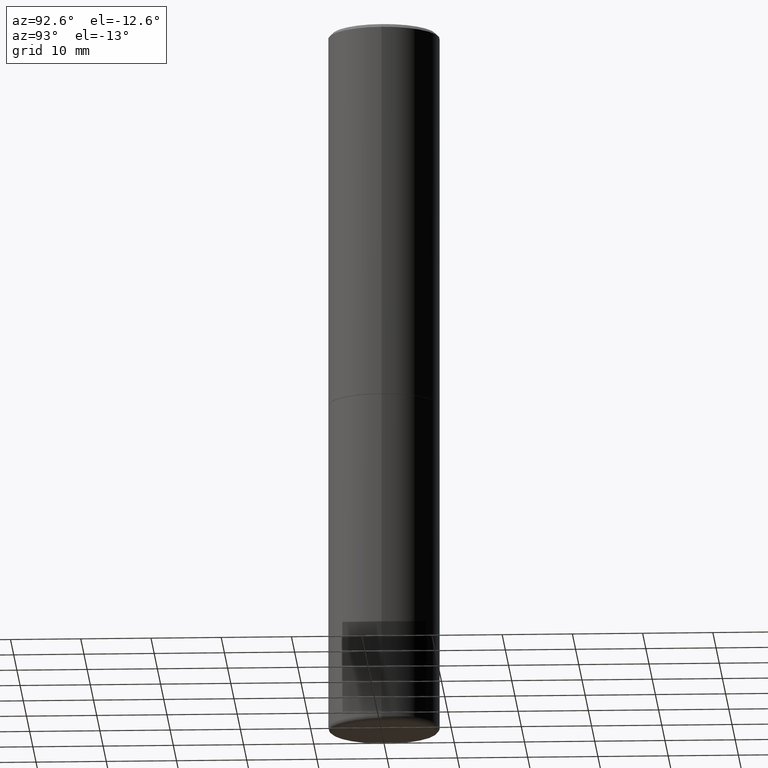
[diagram: clean part render]
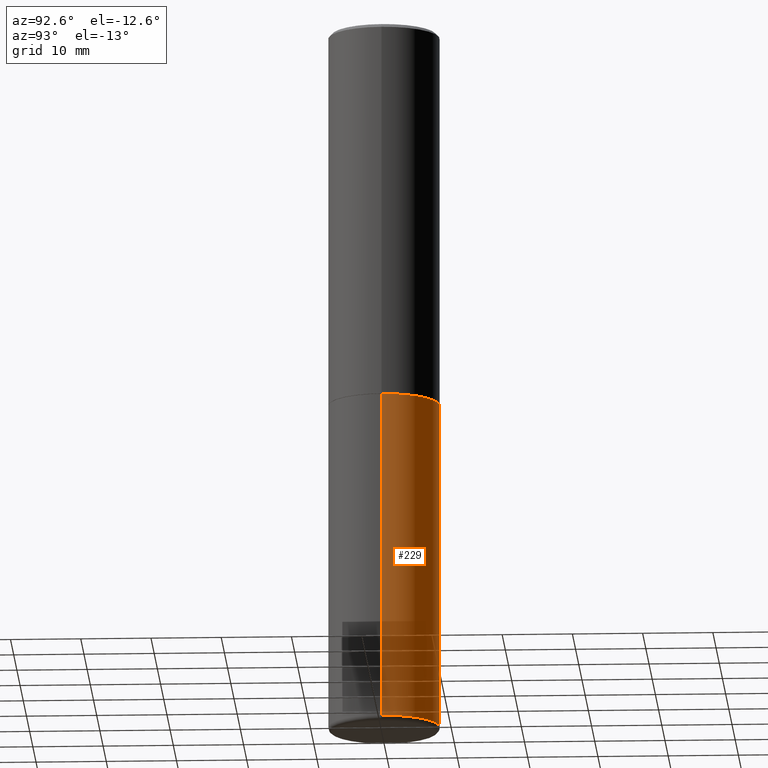
[diagram: same view with one face highlighted and labeled with its STEP entity id]
A machine part, auxiliary view. The second image highlights one B-rep face of the part: STEP entity #229.
In plain terms, the highlighted cylindrical surface (partial cylindrical patch) has radius 7.9375 mm, axis along (-0, 0, 1).
Its self-contained STEP definition (entity closure, byte-faithful):
#2 = DIRECTION ( 'NONE',  ( 1.000000000000000000, -6.982962677686269077E-15, 0.000000000000000000 ) ) ;
#6 = FACE_OUTER_BOUND ( 'NONE', #79, .T. ) ;
#26 = ORIENTED_EDGE ( 'NONE', *, *, #93, .F. ) ;
#30 = DIRECTION ( 'NONE',  ( -2.445468806185136597E-29, 3.491481338843145583E-15, 1.000000000000000000 ) ) ;
#54 = EDGE_CURVE ( 'NONE', #322, #154, #63, .T. ) ;
#63 = CIRCLE ( 'NONE', #349, 0.3125000000000000000 ) ;
#64 = VECTOR ( 'NONE', #198, 39.37007874015748143 ) ;
#70 = CARTESIAN_POINT ( 'NONE',  ( 0.000000000000000000, 0.000000000000000000, 0.000000000000000000 ) ) ;
#79 = EDGE_LOOP ( 'NONE', ( #142, #310, #157, #26 ) ) ;
#89 = VECTOR ( 'NONE', #262, 39.37007874015748143 ) ;
#93 = EDGE_CURVE ( 'NONE', #179, #322, #265, .T. ) ;
#104 = CARTESIAN_POINT ( 'NONE',  ( -0.3125000000000000000, -8.419843330874173211E-15, -2.125000000000000000 ) ) ;
#111 = CARTESIAN_POINT ( 'NONE',  ( -0.3124999999999999445, -1.164073486595697430E-14, -3.970000000000000195 ) ) ;
#116 = DIRECTION ( 'NONE',  ( -2.445468806185136597E-29, 3.491481338843145583E-15, 1.000000000000000000 ) ) ;
#142 = ORIENTED_EDGE ( 'NONE', *, *, #358, .T. ) ;
#143 = CARTESIAN_POINT ( 'NONE',  ( 9.708511160554992872E-29, -1.386118091520728738E-14, -3.970000000000000195 ) ) ;
#145 = DIRECTION ( 'NONE',  ( 1.000000000000000000, -6.982962677686264344E-15, 0.000000000000000000 ) ) ;
#154 = VERTEX_POINT ( 'NONE', #104 ) ;
#157 = ORIENTED_EDGE ( 'NONE', *, *, #54, .F. ) ;
#166 = CARTESIAN_POINT ( 'NONE',  ( 0.3125000000000000000, -2.182175836776958347E-15, 1.523805242436230075E-29 ) ) ;
#179 = VERTEX_POINT ( 'NONE', #359 ) ;
#197 = CARTESIAN_POINT ( 'NONE',  ( 5.196621213143415268E-29, -7.419397845041683624E-15, -2.125000000000000000 ) ) ;
#198 = DIRECTION ( 'NONE',  ( -2.445468806185136877E-29, 3.491481338843145188E-15, 1.000000000000000000 ) ) ;
#201 = AXIS2_PLACEMENT_3D ( 'NONE', #70, #116, #368 ) ;
#229 = ADVANCED_FACE ( 'NONE', ( #6 ), #267, .T. ) ;
#237 = LINE ( 'NONE', #367, #64 ) ;
#262 = DIRECTION ( 'NONE',  ( -2.445468806185136877E-29, 3.491481338843145188E-15, 1.000000000000000000 ) ) ;
#264 = EDGE_CURVE ( 'NONE', #370, #154, #237, .T. ) ;
#265 = LINE ( 'NONE', #166, #89 ) ;
#267 = CYLINDRICAL_SURFACE ( 'NONE', #201, 0.3125000000000000000 ) ;
#272 = DIRECTION ( 'NONE',  ( -2.445468806185136597E-29, 3.491481338843145583E-15, 1.000000000000000000 ) ) ;
#310 = ORIENTED_EDGE ( 'NONE', *, *, #264, .T. ) ;
#319 = AXIS2_PLACEMENT_3D ( 'NONE', #143, #272, #145 ) ;
#322 = VERTEX_POINT ( 'NONE', #335 ) ;
#335 = CARTESIAN_POINT ( 'NONE',  ( 0.3125000000000000000, -9.601573681818641971E-15, -2.125000000000000000 ) ) ;
#349 = AXIS2_PLACEMENT_3D ( 'NONE', #197, #30, #2 ) ;
#358 = EDGE_CURVE ( 'NONE', #179, #370, #410, .T. ) ;
#359 = CARTESIAN_POINT ( 'NONE',  ( 0.3124999999999999445, -1.604335675198424415E-14, -3.970000000000000195 ) ) ;
#367 = CARTESIAN_POINT ( 'NONE',  ( -0.3125000000000000000, 2.220446049250313081E-15, -1.537167215704658232E-29 ) ) ;
#368 = DIRECTION ( 'NONE',  ( 1.000000000000000000, -6.982962677686266711E-15, 4.876176775795936353E-29 ) ) ;
#370 = VERTEX_POINT ( 'NONE', #111 ) ;
#410 = CIRCLE ( 'NONE', #319, 0.3124999999999999445 ) ;